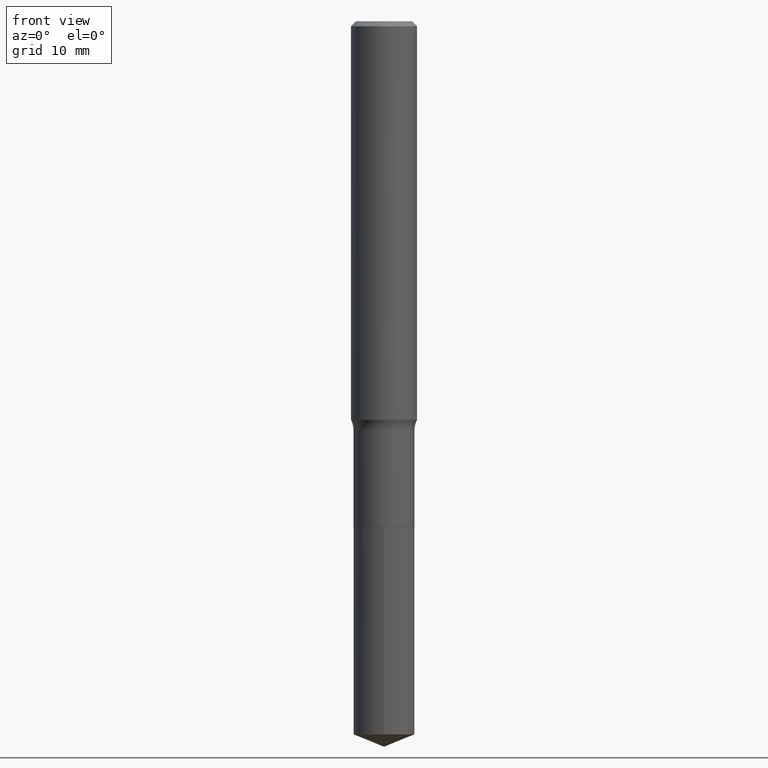
[diagram: clean part render]
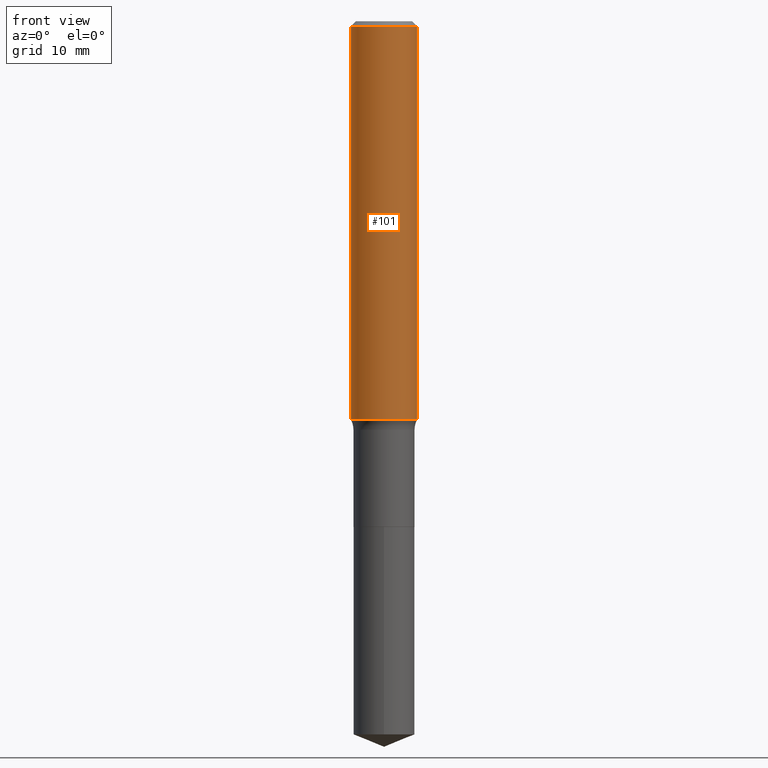
[diagram: same view with one face highlighted and labeled with its STEP entity id]
A machine part, front view. The second image highlights one B-rep face of the part: STEP entity #101.
In plain terms, the highlighted cylindrical surface (edge-blend (fillet) strip) has radius 2.9997 mm, axis along (-0, 0, 1).
Its self-contained STEP definition (entity closure, byte-faithful):
#11 = CYLINDRICAL_SURFACE ( 'NONE', #95, 0.1181000000000000799 ) ;
#14 = VERTEX_POINT ( 'NONE', #22 ) ;
#17 = CIRCLE ( 'NONE', #290, 0.1181000000000001632 ) ;
#22 = CARTESIAN_POINT ( 'NONE',  ( -0.1181000000000001909, -4.144595831574545363E-15, -1.427401815688501108 ) ) ;
#30 = LINE ( 'NONE', #373, #107 ) ;
#34 = DIRECTION ( 'NONE',  ( -2.445468806185136877E-29, 3.491481338843145188E-15, 1.000000000000000000 ) ) ;
#38 = EDGE_CURVE ( 'NONE', #491, #433, #300, .T. ) ;
#58 = VERTEX_POINT ( 'NONE', #387 ) ;
#72 = DIRECTION ( 'NONE',  ( -2.445468806185136877E-29, 3.491481338843145188E-15, 1.000000000000000000 ) ) ;
#74 = CARTESIAN_POINT ( 'NONE',  ( 0.1181000000000000799, -8.246878922347486570E-16, 5.758764772215004644E-30 ) ) ;
#95 = AXIS2_PLACEMENT_3D ( 'NONE', #365, #251, #468 ) ;
#101 = ADVANCED_FACE ( 'NONE', ( #379 ), #11, .T. ) ;
#107 = VECTOR ( 'NONE', #72, 39.37007874015748143 ) ;
#112 = LINE ( 'NONE', #74, #399 ) ;
#116 = ORIENTED_EDGE ( 'NONE', *, *, #38, .F. ) ;
#164 = AXIS2_PLACEMENT_3D ( 'NONE', #432, #320, #232 ) ;
#167 = DIRECTION ( 'NONE',  ( 1.000000000000000000, -6.982962677686270655E-15, 0.000000000000000000 ) ) ;
#176 = EDGE_CURVE ( 'NONE', #14, #58, #17, .T. ) ;
#192 = ORIENTED_EDGE ( 'NONE', *, *, #176, .T. ) ;
#212 = CARTESIAN_POINT ( 'NONE',  ( -0.1180999999999999966, -1.683648226279736288E-15, -0.01771500000000010913 ) ) ;
#232 = DIRECTION ( 'NONE',  ( 1.000000000000000000, -6.982962677686266711E-15, 0.000000000000000000 ) ) ;
#251 = DIRECTION ( 'NONE',  ( -2.445468806185136597E-29, 3.491481338843145583E-15, 1.000000000000000000 ) ) ;
#274 = EDGE_LOOP ( 'NONE', ( #420, #192, #384, #116 ) ) ;
#290 = AXIS2_PLACEMENT_3D ( 'NONE', #322, #363, #167 ) ;
#300 = CIRCLE ( 'NONE', #164, 0.1180999999999999966 ) ;
#307 = EDGE_CURVE ( 'NONE', #58, #433, #112, .T. ) ;
#320 = DIRECTION ( 'NONE',  ( -2.445468806185136597E-29, 3.491481338843145583E-15, 1.000000000000000000 ) ) ;
#322 = CARTESIAN_POINT ( 'NONE',  ( 3.490666614158254888E-29, -4.983746802507225138E-15, -1.427401815688501108 ) ) ;
#363 = DIRECTION ( 'NONE',  ( -2.445468806185136597E-29, 3.491481338843145583E-15, 1.000000000000000000 ) ) ;
#364 = CARTESIAN_POINT ( 'NONE',  ( 0.1180999999999999966, -8.865394841523547570E-16, -0.01771500000000010913 ) ) ;
#365 = CARTESIAN_POINT ( 'NONE',  ( 0.000000000000000000, 0.000000000000000000, 0.000000000000000000 ) ) ;
#373 = CARTESIAN_POINT ( 'NONE',  ( -0.1181000000000000799, 8.391509709326788873E-16, -5.809262341591047988E-30 ) ) ;
#379 = FACE_OUTER_BOUND ( 'NONE', #274, .T. ) ;
#384 = ORIENTED_EDGE ( 'NONE', *, *, #307, .T. ) ;
#387 = CARTESIAN_POINT ( 'NONE',  ( 0.1181000000000001909, -5.808434694741974978E-15, -1.427401815688501108 ) ) ;
#399 = VECTOR ( 'NONE', #34, 39.37007874015748143 ) ;
#420 = ORIENTED_EDGE ( 'NONE', *, *, #425, .F. ) ;
#425 = EDGE_CURVE ( 'NONE', #14, #491, #30, .T. ) ;
#432 = CARTESIAN_POINT ( 'NONE',  ( 4.332147990156996744E-31, -6.185159191760670395E-17, -0.01771500000000010913 ) ) ;
#433 = VERTEX_POINT ( 'NONE', #364 ) ;
#468 = DIRECTION ( 'NONE',  ( 1.000000000000000000, -6.982962677686266711E-15, 4.876176775795936353E-29 ) ) ;
#491 = VERTEX_POINT ( 'NONE', #212 ) ;